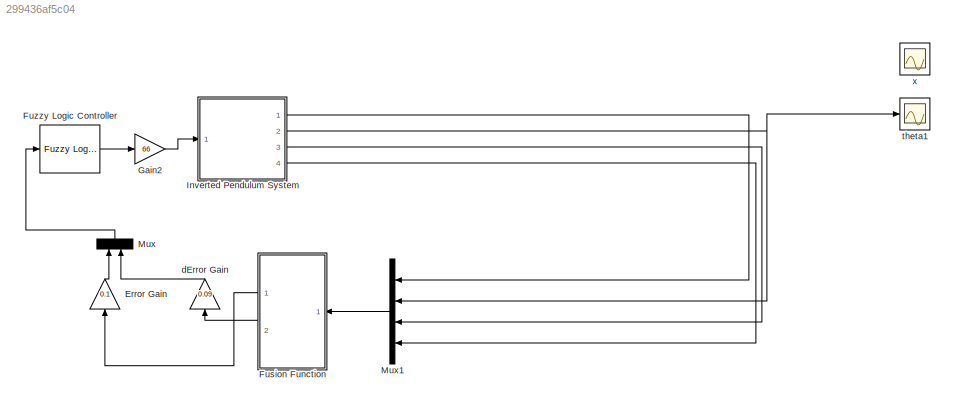
MODEL slx_299436af5c04
KIND model
CONFIG AbsTol = auto
CONFIG FixedStep = auto
CONFIG InitFcn = fuzzy_logic
CONFIG MaxStep = auto
CONFIG MinStep = auto
CONFIG PreLoadFcn = fuzzy_logic
CONFIG RelTol = 1e-3
CONFIG SampleTimeConstraint = Unconstrained
CONFIG Solver = ode45
CONFIG SolverMode = Auto
CONFIG SolverName = ode45
CONFIG StartFcn = fuzzy_logic
CONFIG StartTime = 0.0
CONFIG StopTime = 5
BLOCK [Gain] Error Gain
  Gain = 0.1
  OutDataTypeStr = Inherit: Inherit via internal rule
  ParamDataTypeStr = Inherit: Inherit via internal rule
  SaturateOnIntegerOverflow = off
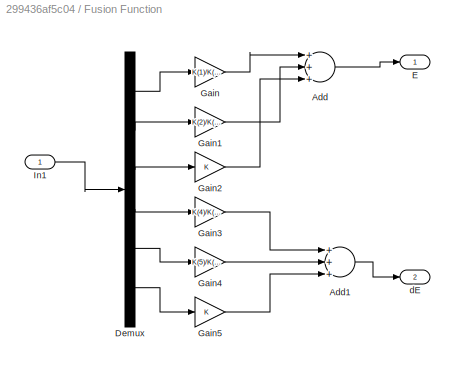
BLOCK [SubSystem] Fusion Function
  Ports = [1, 2]
  RequestExecContextInheritance = off
BLOCK [Sum] Fusion Function/Add
  InputSameDT = off
  Inputs = +++
  OutDataTypeStr = Inherit: Inherit via internal rule
  Ports = [3, 1]
  SaturateOnIntegerOverflow = off
BLOCK [Sum] Fusion Function/Add1
  InputSameDT = off
  Inputs = +++
  OutDataTypeStr = Inherit: Inherit via internal rule
  Ports = [3, 1]
  SaturateOnIntegerOverflow = off
BLOCK [Demux] Fusion Function/Demux
  DisplayOption = bar
  Outputs = 6
  Ports = [1, 6]
BLOCK [Outport] Fusion Function/E
  IconDisplay = Port number
BLOCK [Gain] Fusion Function/Gain
  Gain = K(1)/K(3)
  OutDataTypeStr = Inherit: Inherit via internal rule
  ParamDataTypeStr = Inherit: Inherit via internal rule
  SaturateOnIntegerOverflow = off
BLOCK [Gain] Fusion Function/Gain1
  Gain = K(2)/K(3)
  OutDataTypeStr = Inherit: Inherit via internal rule
  ParamDataTypeStr = Inherit: Inherit via internal rule
  SaturateOnIntegerOverflow = off
BLOCK [Gain] Fusion Function/Gain2
  OutDataTypeStr = Inherit: Inherit via internal rule
  ParamDataTypeStr = Inherit: Inherit via internal rule
  SaturateOnIntegerOverflow = off
BLOCK [Gain] Fusion Function/Gain3
  Gain = K(4)/K(6)
  OutDataTypeStr = Inherit: Inherit via internal rule
  ParamDataTypeStr = Inherit: Inherit via internal rule
  SaturateOnIntegerOverflow = off
BLOCK [Gain] Fusion Function/Gain4
  Gain = K(5)/K(6)
  OutDataTypeStr = Inherit: Inherit via internal rule
  ParamDataTypeStr = Inherit: Inherit via internal rule
  SaturateOnIntegerOverflow = off
BLOCK [Gain] Fusion Function/Gain5
  OutDataTypeStr = Inherit: Inherit via internal rule
  ParamDataTypeStr = Inherit: Inherit via internal rule
  SaturateOnIntegerOverflow = off
BLOCK [Inport] Fusion Function/In1
  IconDisplay = Port number
BLOCK [Outport] Fusion Function/dE
  IconDisplay = Port number
  Port = 2
BLOCK [Reference] Fuzzy Logic Controller  REF=fuzblock/Fuzzy Logic   (lib defined in mdl_858b3b3e7478)
Controller
  Ports = [1, 1]
  SourceBlock = fuzblock/Fuzzy Logic \nController
  SourceType = FIS
  fis = 'MYFUZ.fis'
BLOCK [Gain] Gain2
  Gain = 66
  OutDataTypeStr = Inherit: Inherit via internal rule
  ParamDataTypeStr = Inherit: Inherit via internal rule
  SaturateOnIntegerOverflow = off
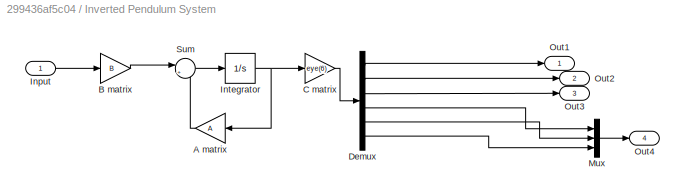
BLOCK [SubSystem] Inverted Pendulum System
  Ports = [1, 4]
  RequestExecContextInheritance = off
BLOCK [Gain] Inverted Pendulum System/A matrix
  Gain = A
  Multiplication = Matrix(K*u)
  OutDataTypeStr = Inherit: Inherit via internal rule
  ParamDataTypeStr = Inherit: Inherit via internal rule
  SaturateOnIntegerOverflow = off
BLOCK [Gain] Inverted Pendulum System/B matrix
  Gain = B
  Multiplication = Matrix(K*u)
  OutDataTypeStr = Inherit: Inherit via internal rule
  ParamDataTypeStr = Inherit: Inherit via internal rule
  SaturateOnIntegerOverflow = off
BLOCK [Gain] Inverted Pendulum System/C matrix
  Gain = eye(6)
  Multiplication = Matrix(K*u)
  OutDataTypeStr = Inherit: Inherit via internal rule
  ParamDataTypeStr = Inherit: Inherit via internal rule
  SaturateOnIntegerOverflow = off
BLOCK [Demux] Inverted Pendulum System/Demux
  DisplayOption = bar
  Outputs = 6
  Ports = [1, 6]
BLOCK [Inport] Inverted Pendulum System/Input
  IconDisplay = Port number
BLOCK [Integrator] Inverted Pendulum System/Integrator
  InitialCondition = [0 0.1 0.1 0 0 0]
  Ports = [1, 1]
BLOCK [Mux] Inverted Pendulum System/Mux
  DisplayOption = bar
  Inputs = 3
  Ports = [3, 1]
BLOCK [Outport] Inverted Pendulum System/Out1
  IconDisplay = Port number
BLOCK [Outport] Inverted Pendulum System/Out2
  IconDisplay = Port number
  Port = 2
BLOCK [Outport] Inverted Pendulum System/Out3
  IconDisplay = Port number
  Port = 3
BLOCK [Outport] Inverted Pendulum System/Out4
  IconDisplay = Port number
  Port = 4
BLOCK [Sum] Inverted Pendulum System/Sum
  IconShape = round
  InputSameDT = off
  Inputs = |++
  OutDataTypeStr = Inherit: Inherit via internal rule
  Ports = [2, 1]
  SaturateOnIntegerOverflow = off
BLOCK [Mux] Mux
  DisplayOption = bar
  Inputs = 2
  Ports = [2, 1]
BLOCK [Mux] Mux1
  DisplayOption = bar
  Ports = [4, 1]
BLOCK [Gain] dError Gain
  Gain = 0.09
  OutDataTypeStr = Inherit: Inherit via internal rule
  ParamDataTypeStr = Inherit: Inherit via internal rule
  SaturateOnIntegerOverflow = off
BLOCK [Scope] theta1
  Floating = off
  LimitDataPoints = off
  NumInputPorts = 1
  Ports = [1]
  SaveName = theta1
  SaveToWorkspace = on
BLOCK [Scope] x
  Floating = off
  LimitDataPoints = off
  NumInputPorts = 1
  Ports = [1]
  SaveName = x
  SaveToWorkspace = on
LINE Error Gain:1 -> Mux:1
LINE Fusion Function/Add1:1 -> Fusion Function/dE:1
LINE Fusion Function/Add:1 -> Fusion Function/E:1
LINE Fusion Function/Demux:1 -> Fusion Function/Gain:1
LINE Fusion Function/Demux:2 -> Fusion Function/Gain1:1
LINE Fusion Function/Demux:3 -> Fusion Function/Gain2:1
LINE Fusion Function/Demux:4 -> Fusion Function/Gain3:1
LINE Fusion Function/Demux:5 -> Fusion Function/Gain4:1
LINE Fusion Function/Demux:6 -> Fusion Function/Gain5:1
LINE Fusion Function/Gain1:1 -> Fusion Function/Add:2
LINE Fusion Function/Gain2:1 -> Fusion Function/Add:3
LINE Fusion Function/Gain3:1 -> Fusion Function/Add1:1
LINE Fusion Function/Gain4:1 -> Fusion Function/Add1:2
LINE Fusion Function/Gain5:1 -> Fusion Function/Add1:3
LINE Fusion Function/Gain:1 -> Fusion Function/Add:1
LINE Fusion Function/In1:1 -> Fusion Function/Demux:1
LINE Fusion Function:1 -> Error Gain:1
LINE Fusion Function:2 -> dError Gain:1
LINE Fuzzy Logic Controller:1 -> Gain2:1
LINE Gain2:1 -> Inverted Pendulum System:1
LINE Inverted Pendulum System/A matrix:1 -> Inverted Pendulum System/Sum:2
LINE Inverted Pendulum System/B matrix:1 -> Inverted Pendulum System/Sum:1
LINE Inverted Pendulum System/C matrix:1 -> Inverted Pendulum System/Demux:1
LINE Inverted Pendulum System/Demux:1 -> Inverted Pendulum System/Out1:1
LINE Inverted Pendulum System/Demux:2 -> Inverted Pendulum System/Out2:1
LINE Inverted Pendulum System/Demux:3 -> Inverted Pendulum System/Out3:1
LINE Inverted Pendulum System/Demux:4 -> Inverted Pendulum System/Mux:1
LINE Inverted Pendulum System/Demux:5 -> Inverted Pendulum System/Mux:2
LINE Inverted Pendulum System/Demux:6 -> Inverted Pendulum System/Mux:3
LINE Inverted Pendulum System/Input:1 -> Inverted Pendulum System/B matrix:1
NET Inverted Pendulum System/Integrator:1 -> Inverted Pendulum System/A matrix:1, Inverted Pendulum System/C matrix:1
LINE Inverted Pendulum System/Mux:1 -> Inverted Pendulum System/Out4:1
LINE Inverted Pendulum System/Sum:1 -> Inverted Pendulum System/Integrator:1
LINE Inverted Pendulum System:1 -> Mux1:1
NET Inverted Pendulum System:2 -> Mux1:2, theta1:1
LINE Inverted Pendulum System:3 -> Mux1:3
LINE Inverted Pendulum System:4 -> Mux1:4
LINE Mux1:1 -> Fusion Function:1
LINE Mux:1 -> Fuzzy Logic Controller:1
LINE dError Gain:1 -> Mux:2
note: NET lines group one-source signal fan-out (src -> all destinations, sorted); 1:1 wires keep LINE
